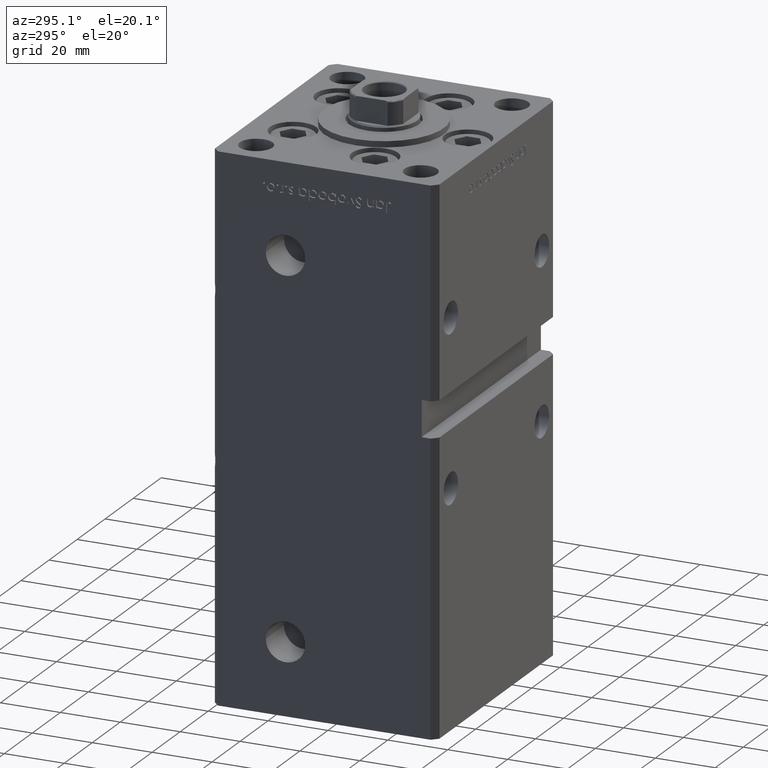
[diagram: clean part render]
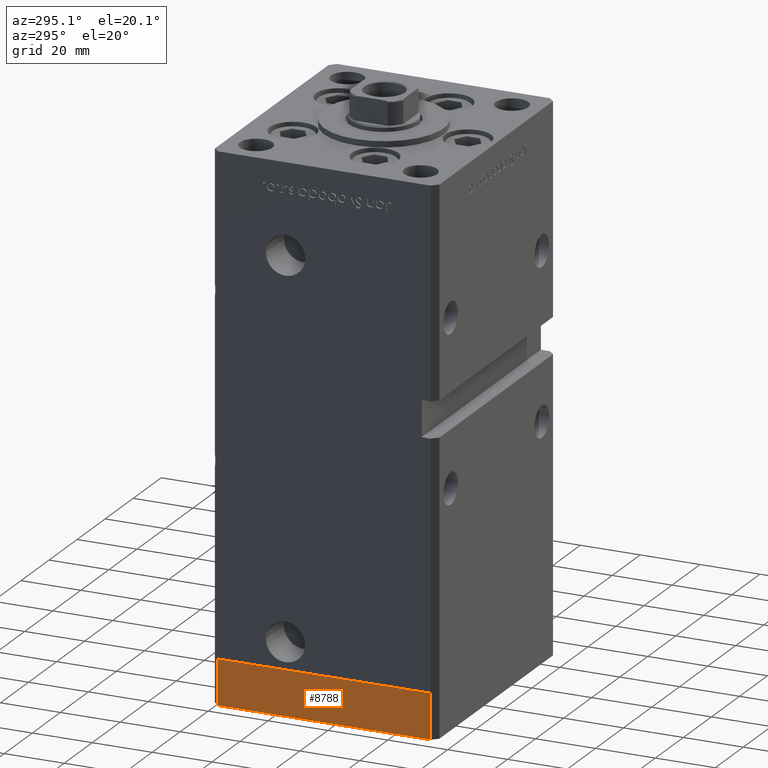
[diagram: same view with one face highlighted and labeled with its STEP entity id]
A machine part, auxiliary view. The second image highlights one B-rep face of the part: STEP entity #8788.
In plain terms, the highlighted planar face has unit normal (-1, -0, 0).
Its self-contained STEP definition (entity closure, byte-faithful):
#372 = EDGE_CURVE ( 'NONE', #22347, #20716, #31790, .T. ) ;
#777 = FACE_OUTER_BOUND ( 'NONE', #5569, .T. ) ;
#2359 = LINE ( 'NONE', #43475, #23127 ) ;
#2798 = ORIENTED_EDGE ( 'NONE', *, *, #372, .F. ) ;
#2940 = LINE ( 'NONE', #31676, #35914 ) ;
#3580 = CARTESIAN_POINT ( 'NONE',  ( 42.50000000000000711, -35.50000000000000000, 0.000000000000000000 ) ) ;
#5569 = EDGE_LOOP ( 'NONE', ( #2798, #20726, #45482, #17722 ) ) ;
#8788 = ADVANCED_FACE ( 'NONE', ( #777 ), #17142, .T. ) ;
#10393 = CARTESIAN_POINT ( 'NONE',  ( 42.50000000000000711, -35.50000000000000000, -15.00000000000000000 ) ) ;
#13137 = DIRECTION ( 'NONE',  ( -1.172770800660376741E-15, 1.000000000000000000, 0.000000000000000000 ) ) ;
#15637 = VERTEX_POINT ( 'NONE', #50407 ) ;
#17142 = PLANE ( 'NONE',  #46522 ) ;
#17722 = ORIENTED_EDGE ( 'NONE', *, *, #45760, .T. ) ;
#18433 = LINE ( 'NONE', #10393, #38372 ) ;
#20263 = DIRECTION ( 'NONE',  ( 0.000000000000000000, 0.000000000000000000, 1.000000000000000000 ) ) ;
#20716 = VERTEX_POINT ( 'NONE', #39511 ) ;
#20726 = ORIENTED_EDGE ( 'NONE', *, *, #27553, .F. ) ;
#22347 = VERTEX_POINT ( 'NONE', #45671 ) ;
#23127 = VECTOR ( 'NONE', #51552, 1000.000000000000000 ) ;
#24420 = CARTESIAN_POINT ( 'NONE',  ( 42.50000000000000711, -35.50000000000000000, -15.00000000000000000 ) ) ;
#27553 = EDGE_CURVE ( 'NONE', #15637, #22347, #18433, .T. ) ;
#27903 = CARTESIAN_POINT ( 'NONE',  ( 42.49999999999992895, 35.50000000000000000, -15.00000000000000000 ) ) ;
#28272 = DIRECTION ( 'NONE',  ( -1.172770800660376741E-15, 1.000000000000000000, 0.000000000000000000 ) ) ;
#31676 = CARTESIAN_POINT ( 'NONE',  ( 42.50000000000000711, -35.50000000000000000, -15.00000000000000000 ) ) ;
#31790 = LINE ( 'NONE', #3580, #50364 ) ;
#33551 = DIRECTION ( 'NONE',  ( 1.000000000000000000, 1.172770800660376741E-15, -0.000000000000000000 ) ) ;
#35914 = VECTOR ( 'NONE', #48080, 1000.000000000000000 ) ;
#36112 = EDGE_CURVE ( 'NONE', #15637, #39651, #2940, .T. ) ;
#38372 = VECTOR ( 'NONE', #20263, 1000.000000000000000 ) ;
#39511 = CARTESIAN_POINT ( 'NONE',  ( 42.49999999999992895, 35.50000000000000000, 0.000000000000000000 ) ) ;
#39651 = VERTEX_POINT ( 'NONE', #27903 ) ;
#43475 = CARTESIAN_POINT ( 'NONE',  ( 42.49999999999992895, 35.50000000000000000, -15.00000000000000000 ) ) ;
#45482 = ORIENTED_EDGE ( 'NONE', *, *, #36112, .T. ) ;
#45671 = CARTESIAN_POINT ( 'NONE',  ( 42.50000000000000711, -35.50000000000000000, 0.000000000000000000 ) ) ;
#45760 = EDGE_CURVE ( 'NONE', #39651, #20716, #2359, .T. ) ;
#46522 = AXIS2_PLACEMENT_3D ( 'NONE', #24420, #33551, #13137 ) ;
#48080 = DIRECTION ( 'NONE',  ( -1.172770800660376741E-15, 1.000000000000000000, 0.000000000000000000 ) ) ;
#50364 = VECTOR ( 'NONE', #28272, 1000.000000000000000 ) ;
#50407 = CARTESIAN_POINT ( 'NONE',  ( 42.50000000000000711, -35.50000000000000000, -15.00000000000000000 ) ) ;
#51552 = DIRECTION ( 'NONE',  ( 0.000000000000000000, 0.000000000000000000, 1.000000000000000000 ) ) ;